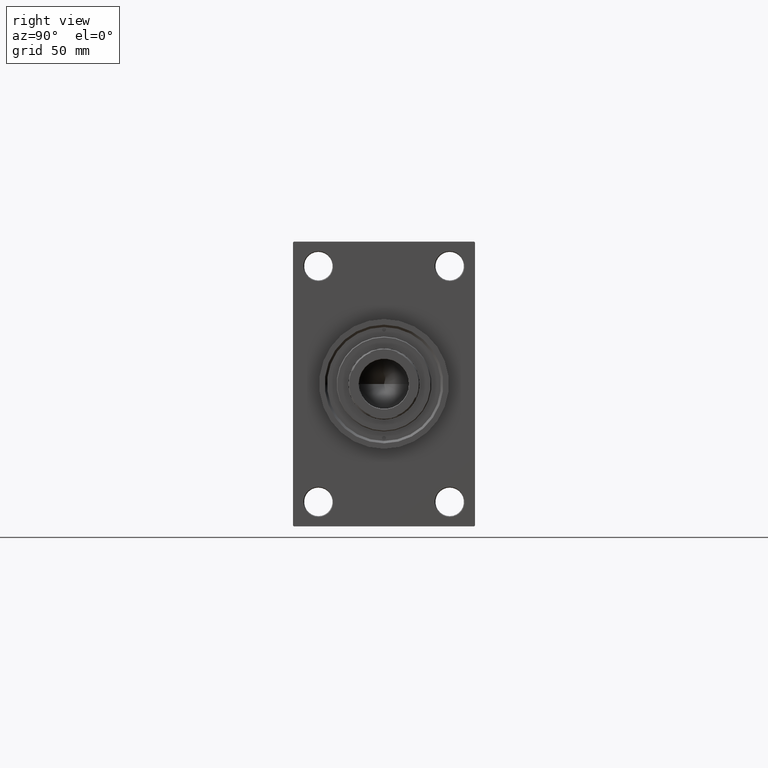
[diagram: clean part render]
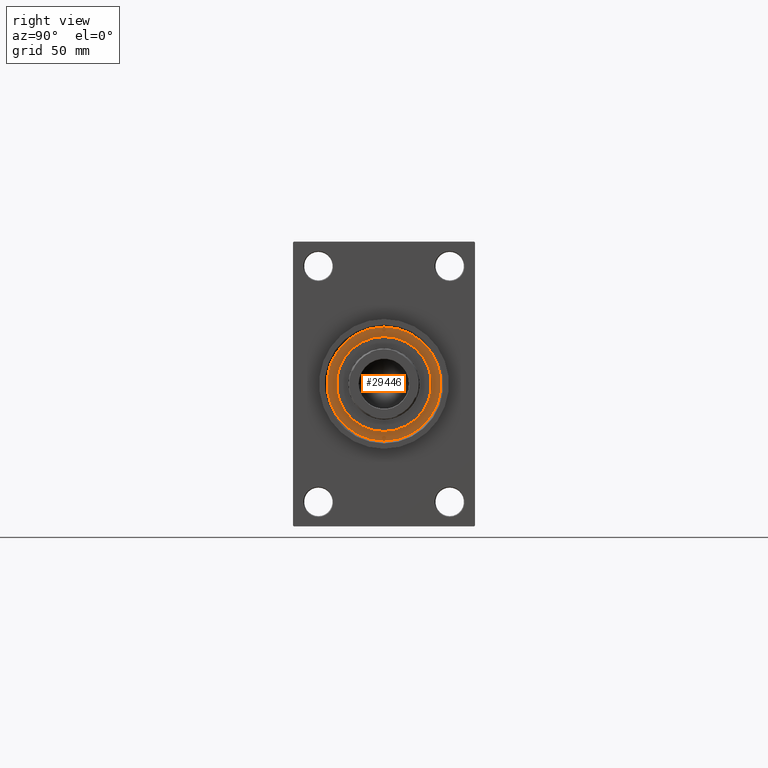
[diagram: same view with one face highlighted and labeled with its STEP entity id]
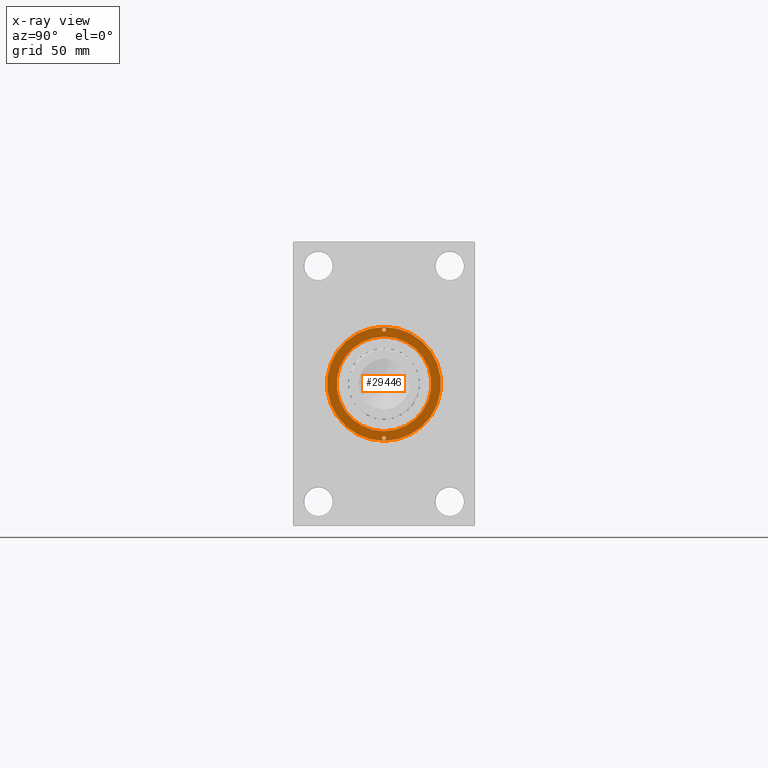
[diagram: x-ray of the same camera — body ghosted, the highlighted face saturated]
A machine part, right view. The second image highlights one B-rep face of the part: STEP entity #29446.
The next image is the same camera in x-ray: the body ghosted, the highlighted face saturated — about 0% of this face is hidden behind the body in this view.
In plain terms, the highlighted planar face has unit normal (1, -0, -0).
Its self-contained STEP definition (entity closure, byte-faithful):
#3226 = VERTEX_POINT ( 'NONE', #34394 ) ;
#3327 = CARTESIAN_POINT ( 'NONE',  ( -34.25000000000000000, 0.000000000000000000, 43.25999999999999801 ) ) ;
#3517 = CIRCLE ( 'NONE', #4288, 30.00000000000000000 ) ;
#3747 = CIRCLE ( 'NONE', #45487, 36.00000000000000000 ) ;
#4288 = AXIS2_PLACEMENT_3D ( 'NONE', #11560, #7924, #13633 ) ;
#4647 = AXIS2_PLACEMENT_3D ( 'NONE', #14785, #39718, #47211 ) ;
#5010 = CIRCLE ( 'NONE', #36722, 36.00000000000000000 ) ;
#5142 = VERTEX_POINT ( 'NONE', #23694 ) ;
#6520 = EDGE_CURVE ( 'NONE', #45379, #28057, #5010, .T. ) ;
#7924 = DIRECTION ( 'NONE',  ( 0.000000000000000000, 0.000000000000000000, 1.000000000000000000 ) ) ;
#10890 = EDGE_LOOP ( 'NONE', ( #36340, #26361 ) ) ;
#11560 = CARTESIAN_POINT ( 'NONE',  ( 0.000000000000000000, 0.000000000000000000, 43.25999999999999801 ) ) ;
#11994 = CARTESIAN_POINT ( 'NONE',  ( 0.000000000000000000, 0.000000000000000000, 43.25999999999999801 ) ) ;
#12146 = CARTESIAN_POINT ( 'NONE',  ( -30.00000000000000000, 0.000000000000000000, 43.25999999999999801 ) ) ;
#12470 = CARTESIAN_POINT ( 'NONE',  ( 30.00000000000000000, 3.673940397442059178E-15, 43.25999999999999801 ) ) ;
#12656 = CARTESIAN_POINT ( 'NONE',  ( 36.00000000000000000, 4.408728476930470856E-15, 43.25999999999999801 ) ) ;
#13023 = FACE_BOUND ( 'NONE', #22204, .T. ) ;
#13150 = CIRCLE ( 'NONE', #4647, 1.250000000000001110 ) ;
#13633 = DIRECTION ( 'NONE',  ( 1.000000000000000000, 0.000000000000000000, 0.000000000000000000 ) ) ;
#13741 = CARTESIAN_POINT ( 'NONE',  ( 0.000000000000000000, 0.000000000000000000, 43.25999999999999801 ) ) ;
#14011 = CIRCLE ( 'NONE', #41064, 1.250000000000001110 ) ;
#14436 = DIRECTION ( 'NONE',  ( 1.000000000000000000, 0.000000000000000000, 0.000000000000000000 ) ) ;
#14605 = ORIENTED_EDGE ( 'NONE', *, *, #39715, .F. ) ;
#14785 = CARTESIAN_POINT ( 'NONE',  ( 34.25000000000000000, 0.000000000000000000, 43.25999999999999801 ) ) ;
#15949 = EDGE_CURVE ( 'NONE', #28057, #45379, #3747, .T. ) ;
#16420 = FACE_OUTER_BOUND ( 'NONE', #27477, .T. ) ;
#16584 = DIRECTION ( 'NONE',  ( 0.000000000000000000, 0.000000000000000000, 1.000000000000000000 ) ) ;
#16657 = FACE_BOUND ( 'NONE', #10890, .T. ) ;
#19971 = EDGE_CURVE ( 'NONE', #5142, #29442, #26318, .T. ) ;
#21785 = ORIENTED_EDGE ( 'NONE', *, *, #33548, .F. ) ;
#22204 = EDGE_LOOP ( 'NONE', ( #21785, #27485 ) ) ;
#23552 = DIRECTION ( 'NONE',  ( 1.000000000000000000, 0.000000000000000000, 0.000000000000000000 ) ) ;
#23598 = DIRECTION ( 'NONE',  ( 1.000000000000000000, 0.000000000000000000, 0.000000000000000000 ) ) ;
#23694 = CARTESIAN_POINT ( 'NONE',  ( 35.50000000000000711, 0.000000000000000000, 43.25999999999999801 ) ) ;
#23780 = ORIENTED_EDGE ( 'NONE', *, *, #6520, .T. ) ;
#24075 = EDGE_CURVE ( 'NONE', #29442, #5142, #13150, .T. ) ;
#25470 = EDGE_CURVE ( 'NONE', #3226, #41024, #14011, .T. ) ;
#26318 = CIRCLE ( 'NONE', #31732, 1.250000000000001110 ) ;
#26361 = ORIENTED_EDGE ( 'NONE', *, *, #24075, .F. ) ;
#26837 = CIRCLE ( 'NONE', #42308, 1.250000000000001110 ) ;
#26854 = VERTEX_POINT ( 'NONE', #12146 ) ;
#27298 = DIRECTION ( 'NONE',  ( 1.000000000000000000, 0.000000000000000000, -0.000000000000000000 ) ) ;
#27477 = EDGE_LOOP ( 'NONE', ( #40269, #23780 ) ) ;
#27485 = ORIENTED_EDGE ( 'NONE', *, *, #38898, .F. ) ;
#28057 = VERTEX_POINT ( 'NONE', #32397 ) ;
#28502 = DIRECTION ( 'NONE',  ( 0.000000000000000000, 0.000000000000000000, 1.000000000000000000 ) ) ;
#28568 = VERTEX_POINT ( 'NONE', #12470 ) ;
#29442 = VERTEX_POINT ( 'NONE', #30938 ) ;
#29446 = ADVANCED_FACE ( 'NONE', ( #30698, #16657, #13023, #16420 ), #34803, .T. ) ;
#30201 = DIRECTION ( 'NONE',  ( 1.000000000000000000, 0.000000000000000000, 0.000000000000000000 ) ) ;
#30674 = DIRECTION ( 'NONE',  ( -0.000000000000000000, -0.000000000000000000, 1.000000000000000000 ) ) ;
#30698 = FACE_BOUND ( 'NONE', #44573, .T. ) ;
#30938 = CARTESIAN_POINT ( 'NONE',  ( 33.00000000000000000, 1.530808498934193050E-16, 43.25999999999999801 ) ) ;
#31682 = ORIENTED_EDGE ( 'NONE', *, *, #25470, .F. ) ;
#31732 = AXIS2_PLACEMENT_3D ( 'NONE', #41430, #47733, #33929 ) ;
#32397 = CARTESIAN_POINT ( 'NONE',  ( -36.00000000000000000, 0.000000000000000000, 43.25999999999999801 ) ) ;
#33548 = EDGE_CURVE ( 'NONE', #26854, #28568, #37428, .T. ) ;
#33929 = DIRECTION ( 'NONE',  ( 1.000000000000000000, 0.000000000000000000, 0.000000000000000000 ) ) ;
#34394 = CARTESIAN_POINT ( 'NONE',  ( -35.50000000000000711, 1.530808498934193050E-16, 43.25999999999999801 ) ) ;
#34803 = PLANE ( 'NONE',  #41197 ) ;
#36340 = ORIENTED_EDGE ( 'NONE', *, *, #19971, .F. ) ;
#36722 = AXIS2_PLACEMENT_3D ( 'NONE', #11994, #16584, #23598 ) ;
#37428 = CIRCLE ( 'NONE', #47510, 30.00000000000000000 ) ;
#38312 = DIRECTION ( 'NONE',  ( 0.000000000000000000, 0.000000000000000000, 1.000000000000000000 ) ) ;
#38898 = EDGE_CURVE ( 'NONE', #28568, #26854, #3517, .T. ) ;
#39632 = DIRECTION ( 'NONE',  ( 1.000000000000000000, 0.000000000000000000, 0.000000000000000000 ) ) ;
#39715 = EDGE_CURVE ( 'NONE', #41024, #3226, #26837, .T. ) ;
#39718 = DIRECTION ( 'NONE',  ( -0.000000000000000000, -0.000000000000000000, 1.000000000000000000 ) ) ;
#40082 = CARTESIAN_POINT ( 'NONE',  ( -33.00000000000000000, 0.000000000000000000, 43.25999999999999801 ) ) ;
#40269 = ORIENTED_EDGE ( 'NONE', *, *, #15949, .T. ) ;
#41024 = VERTEX_POINT ( 'NONE', #40082 ) ;
#41064 = AXIS2_PLACEMENT_3D ( 'NONE', #44189, #47581, #14436 ) ;
#41197 = AXIS2_PLACEMENT_3D ( 'NONE', #46154, #45455, #27298 ) ;
#41430 = CARTESIAN_POINT ( 'NONE',  ( 34.25000000000000000, 0.000000000000000000, 43.25999999999999801 ) ) ;
#41946 = CARTESIAN_POINT ( 'NONE',  ( 0.000000000000000000, 0.000000000000000000, 43.25999999999999801 ) ) ;
#42308 = AXIS2_PLACEMENT_3D ( 'NONE', #3327, #30674, #30201 ) ;
#44189 = CARTESIAN_POINT ( 'NONE',  ( -34.25000000000000000, 0.000000000000000000, 43.25999999999999801 ) ) ;
#44573 = EDGE_LOOP ( 'NONE', ( #14605, #31682 ) ) ;
#45379 = VERTEX_POINT ( 'NONE', #12656 ) ;
#45455 = DIRECTION ( 'NONE',  ( 0.000000000000000000, 0.000000000000000000, 1.000000000000000000 ) ) ;
#45487 = AXIS2_PLACEMENT_3D ( 'NONE', #13741, #28502, #39632 ) ;
#46154 = CARTESIAN_POINT ( 'NONE',  ( 0.000000000000000000, 0.000000000000000000, 43.25999999999999801 ) ) ;
#47211 = DIRECTION ( 'NONE',  ( 1.000000000000000000, 0.000000000000000000, 0.000000000000000000 ) ) ;
#47510 = AXIS2_PLACEMENT_3D ( 'NONE', #41946, #38312, #23552 ) ;
#47581 = DIRECTION ( 'NONE',  ( -0.000000000000000000, -0.000000000000000000, 1.000000000000000000 ) ) ;
#47733 = DIRECTION ( 'NONE',  ( -0.000000000000000000, -0.000000000000000000, 1.000000000000000000 ) ) ;